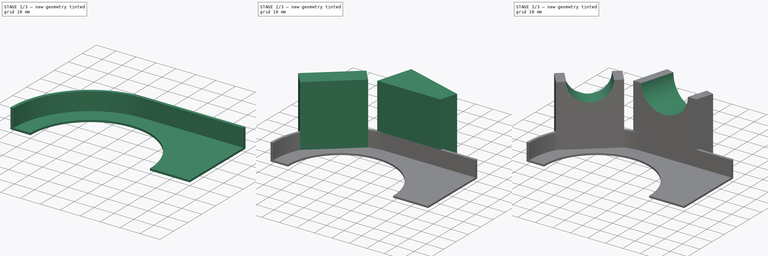
[diagram: build sequence overview — one tinted view per stage of 3, left to right]
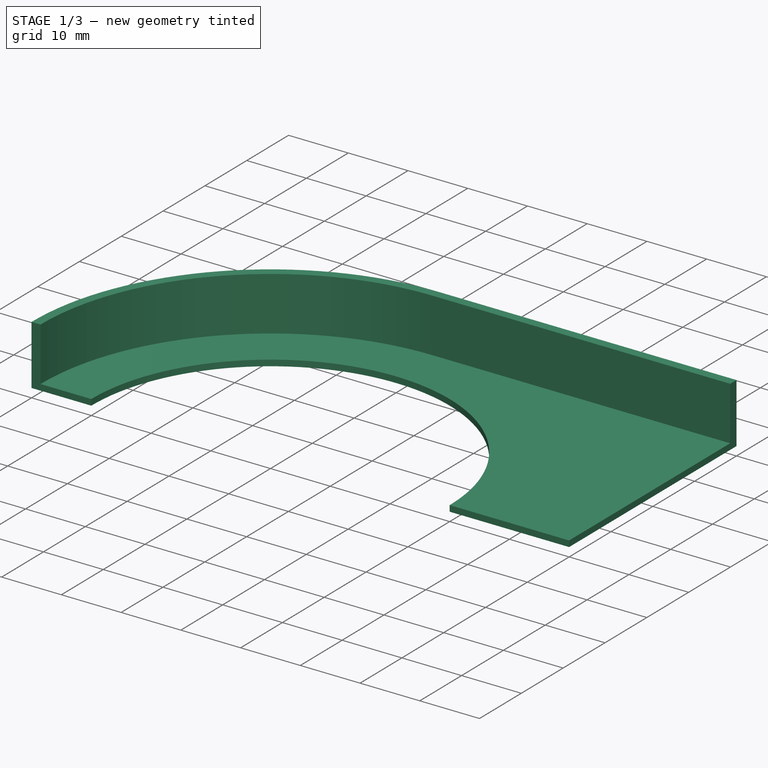
[diagram: stage 1 of 3 — iso view after this stage's code; geometry added in this stage tinted green]
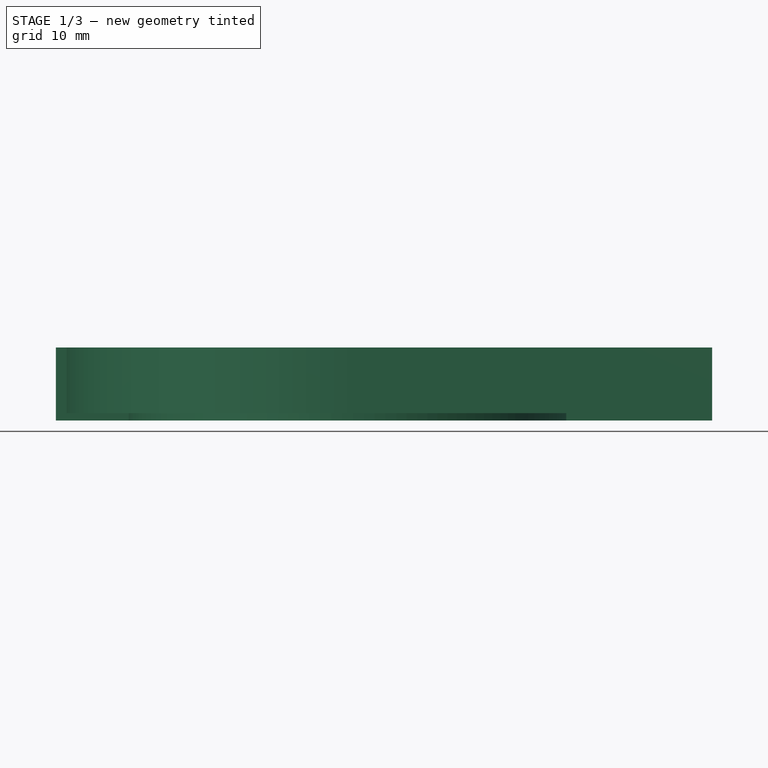
[diagram: stage 1 of 3 — front view after this stage's code; geometry added in this stage tinted green]
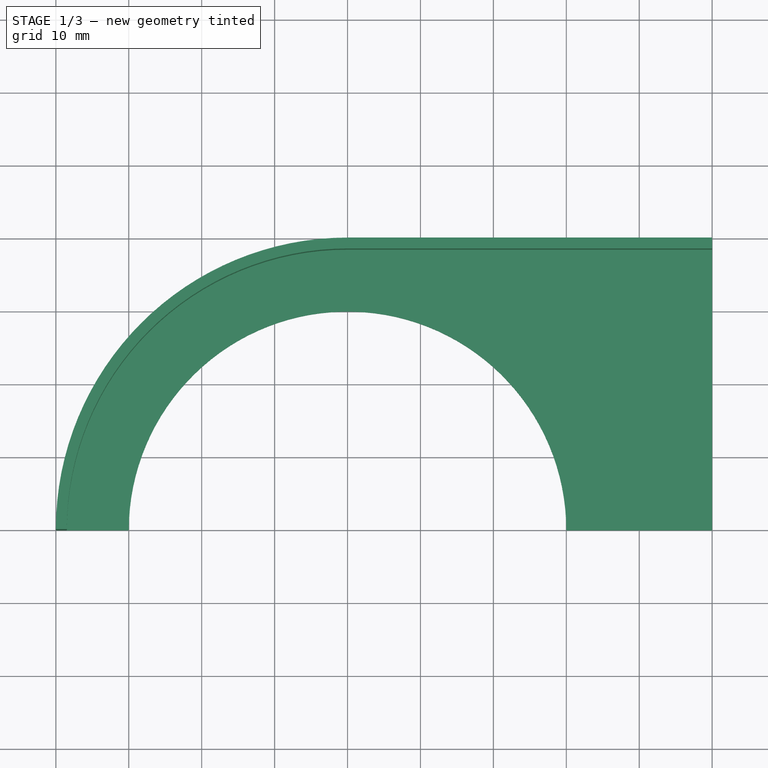
[diagram: stage 1 of 3 — top view after this stage's code; geometry added in this stage tinted green]
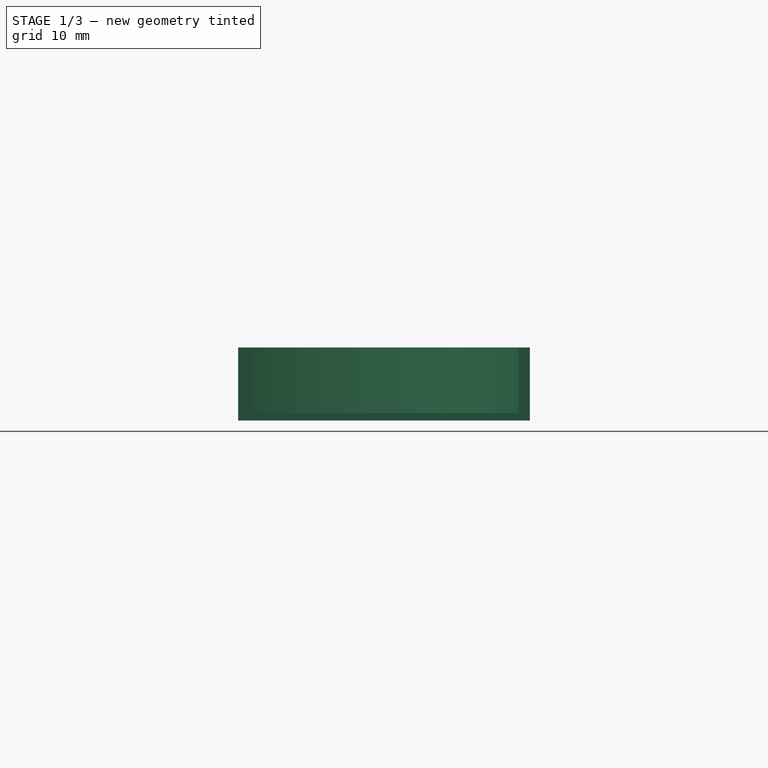
[diagram: stage 1 of 3 — right view after this stage's code; geometry added in this stage tinted green]
FCSTD DOCUMENT  (FreeCAD 0.16R)
Label: Mk725T.01
License: All rights reserved
LicenseURL: http://en.wikipedia.org/wiki/All_rights_reserved
objects: Sketcher::SketchObject×5, PartDesign::Pocket×3, PartDesign::Pad×2
note: 15 computed .brp shape members not serialized (recipe doc carries the construction recipe); baked Part::Feature solids carry a one-line shape summary decoded from their .brp

FEATURE [Sketcher::SketchObject] Sketch
  sketch-geometry (6):
    g0: ArcOfCircle CenterX=0 CenterY=0 CenterZ=0 NormalX=0 NormalY=0 NormalZ=1 Radius=30 StartAngle=0 EndAngle=3.14159
    g1: ArcOfCircle CenterX=0 CenterY=0 CenterZ=0 NormalX=0 NormalY=0 NormalZ=1 Radius=40 StartAngle=1.5708 EndAngle=3.14159
    g2: LineSegment StartX=-40 StartY=0 StartZ=0 EndX=-30 EndY=0 EndZ=0
    g3: LineSegment StartX=0 StartY=40 StartZ=0 EndX=50 EndY=40 EndZ=0
    g4: LineSegment StartX=30 StartY=0 StartZ=0 EndX=50 EndY=0 EndZ=0
    g5: LineSegment StartX=50 StartY=40 StartZ=0 EndX=50 EndY=0 EndZ=0
  constraints (19):
    c: Coincident(g0,g-1)
    c: PointOnObject(g0,g-1)
    c: PointOnObject(g0,g-1)
    c: Radius(g0) = 30
    c: Coincident(g1,g-1)
    c: PointOnObject(g1,g-2)
    c: PointOnObject(g1,g-1)
    c: Radius(g1) = 40
    c: Coincident(g2,g1)
    c: PointOnObject(g2,g-1)
    c: Coincident(g2,g0)
    c: Coincident(g3,g1)
    c: Horizontal(g3)
    c: Distance(g3) = 50
    c: Coincident(g4,g0)
    c: Horizontal(g4)
    c: Coincident(g5,g3)
    c: Coincident(g4,g5)
    c: Vertical(g5)
FEATURE [PartDesign::Pad] Pad
  Length = 10
  Length2 = 100
  Sketch = -> Sketch
  Type = 0
FEATURE [Sketcher::SketchObject] Sketch002
  ExternalGeometry = -> [Pad]
  Placement = pos=(0,0,10) rot=(0,0,1;0rad)
  Support = -> Pad [Face8]
  sketch-geometry (4):
    g0: ArcOfCircle CenterX=0 CenterY=0 CenterZ=0 NormalX=0 NormalY=0 NormalZ=1 Radius=38.5 StartAngle=1.5708 EndAngle=3.14159
    g1: LineSegment StartX=0 StartY=38.5 StartZ=0 EndX=65 EndY=38.5 EndZ=0
    g2: LineSegment StartX=65 StartY=38.5 StartZ=0 EndX=65 EndY=-6.5 EndZ=0
    g3: LineSegment StartX=65 StartY=-6.5 StartZ=0 EndX=-38.5 EndY=0 EndZ=0
  constraints (12):
    c: Coincident(g0,g-1)
    c: PointOnObject(g0,g-1)
    c: PointOnObject(g0,g-2)
    c: Distance(g0,g-3) = 1.5
    c: Coincident(g1,g0)
    c: Horizontal(g1)
    c: Coincident(g1,g2)
    c: Vertical(g2)
    c: Coincident(g2,g3)
    c: Coincident(g3,g0)
    c: Distance(g1) = 65
    c: Distance(g2) = 45
FEATURE [PartDesign::Pocket] Pocket
  Length = 9
  Sketch = -> Sketch002
  Type = 0
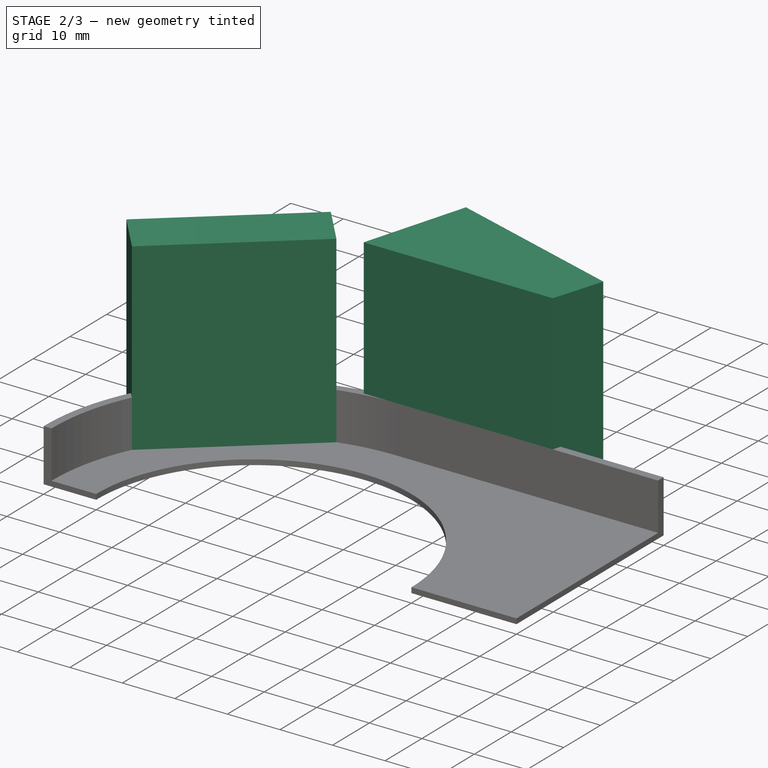
[diagram: stage 2 of 3 — iso view after this stage's code; geometry added in this stage tinted green]
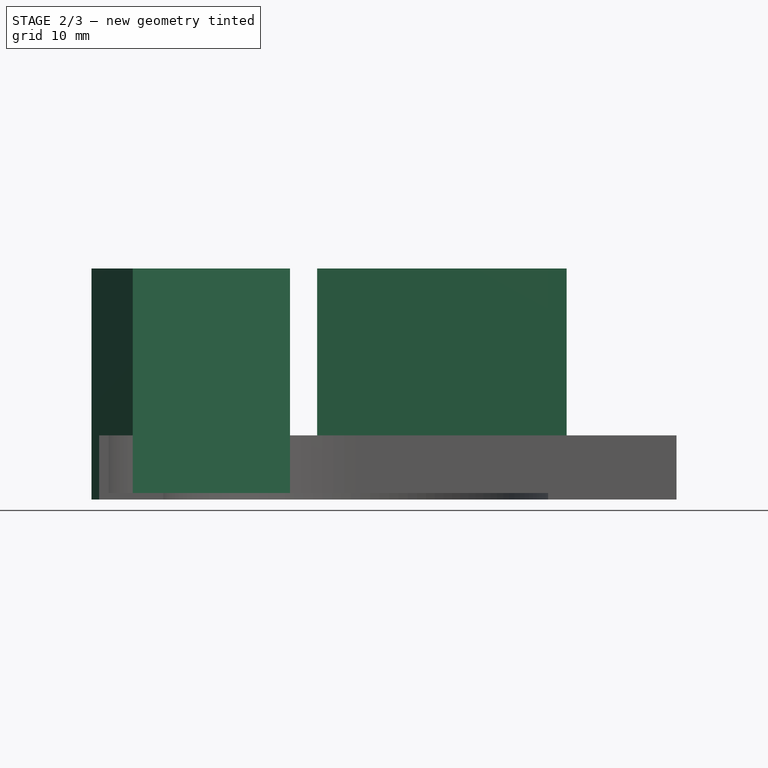
[diagram: stage 2 of 3 — front view after this stage's code; geometry added in this stage tinted green]
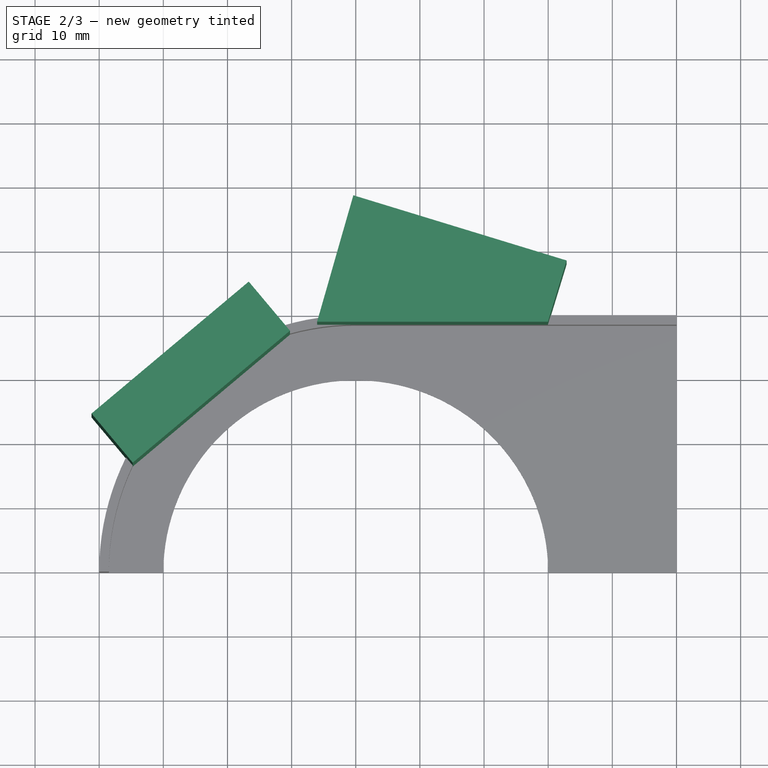
[diagram: stage 2 of 3 — top view after this stage's code; geometry added in this stage tinted green]
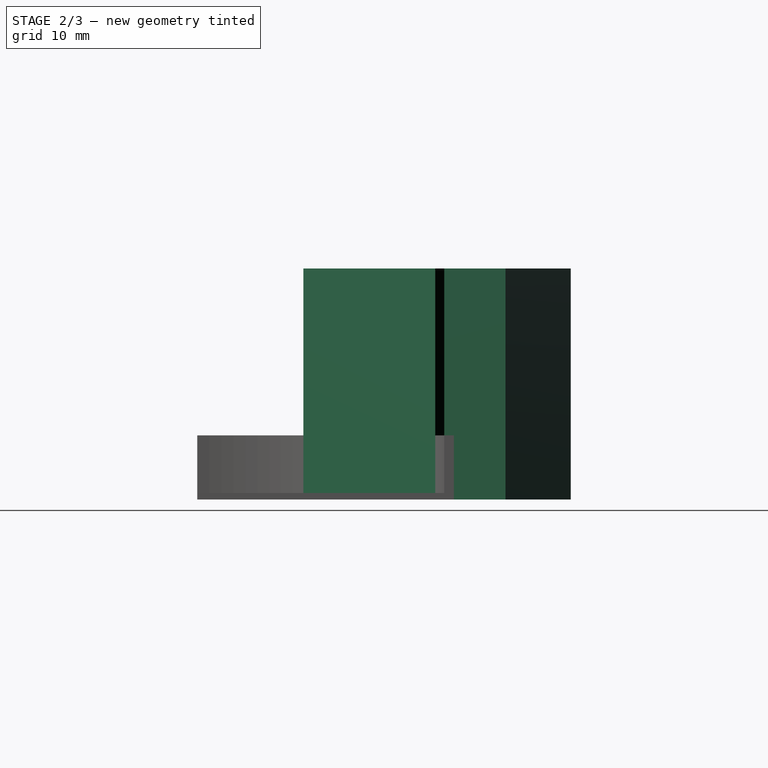
[diagram: stage 2 of 3 — right view after this stage's code; geometry added in this stage tinted green]
FEATURE [Sketcher::SketchObject] Sketch003
  ExternalGeometry = -> [Pocket]
  Placement = pos=(0,0,1) rot=(0,0,1;0rad)
  Support = -> Pocket [Face4]
  sketch-geometry (10):
    g0: LineSegment [constr] StartX=0 StartY=0 StartZ=0 EndX=29.2372 EndY=95.6305 EndZ=0
    g1: LineSegment [constr] StartX=0 StartY=0 StartZ=0 EndX=-64.2788 EndY=76.6044 EndZ=0
    g2: LineSegment StartX=-0.376829 StartY=58.2287 StartZ=0 EndX=-6.02963 EndY=38.5 EndZ=0
    g3: LineSegment StartX=-6.02963 StartY=38.5 StartZ=0 EndX=29.9498 EndY=38.5 EndZ=0
    g4: LineSegment StartX=29.9498 StartY=38.5 StartZ=0 EndX=32.8735 EndY=48.063 EndZ=0
    g5: LineSegment StartX=-16.6802 StartY=44.7703 StartZ=0 EndX=-41.1936 EndY=24.2011 EndZ=0
    g6: LineSegment StartX=-41.1936 StartY=24.2011 StartZ=0 EndX=-34.7658 EndY=16.5406 EndZ=0
    g7: LineSegment StartX=-34.7658 StartY=16.5406 StartZ=0 EndX=-10.2523 EndY=37.1098 EndZ=0
    g8: LineSegment StartX=-10.2523 StartY=37.1098 StartZ=0 EndX=-16.6802 EndY=44.7703 EndZ=0
    g9: LineSegment StartX=-0.376829 StartY=58.2287 StartZ=0 EndX=32.8735 EndY=48.063 EndZ=0
  constraints (26):
    c: Coincident(g0,g-1)
    c: Coincident(g1,g-1)
    c: Coincident(g2,g3)
    c: Coincident(g3,g4)
    c: PointOnObject(g3,g-4)
    c: PointOnObject(g2,g-4)
    c: Parallel(g4,g0)
    c: Distance(g4) = 10
    c: Coincident(g5,g6)
    c: Coincident(g6,g7)
    c: Coincident(g7,g8)
    c: Coincident(g8,g5)
    c: Parallel(g8,g6)
    c: Parallel(g7,g5)
    c: Perpendicular(g8,g7)
    c: Symmetric(g5,g5,g1)
    c: Distance(g8) = 10
    c: Distance(g5) = 32
    c: PointOnObject(g7,g-6)
    c: Angle(g1) = 2.26893
    c: Angle(g0) = 1.27409
    c: Distance(g0) = 100
    c: Distance(g1) = 100
    c: Coincident(g9,g2)
    c: Coincident(g9,g4)
    c: Symmetric(g4,g2,g0)
FEATURE [PartDesign::Pad] Pad001
  Length = 35
  Length2 = 1
  Sketch = -> Sketch003
  Type = 4
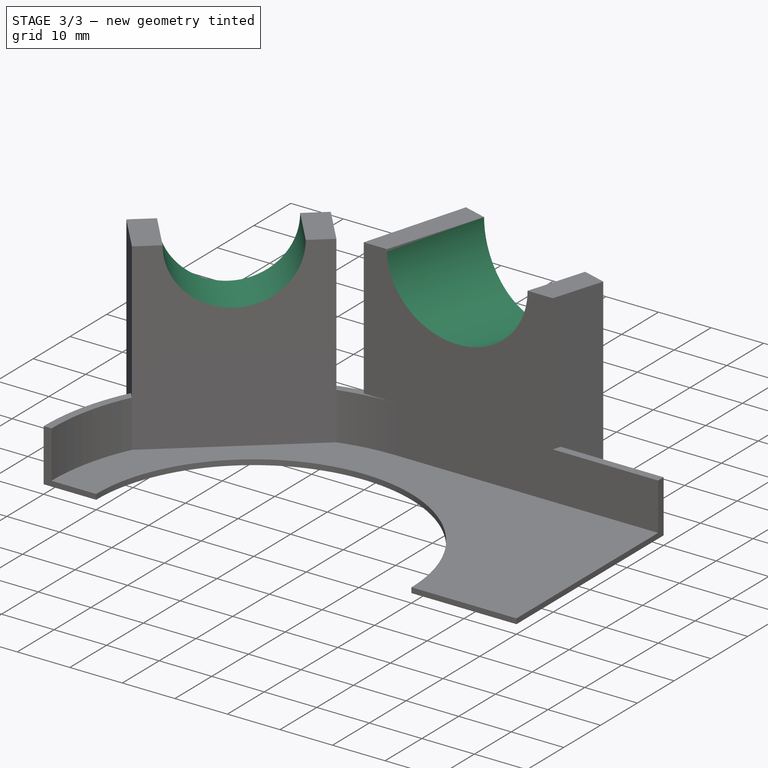
[diagram: stage 3 of 3 — iso view after this stage's code; geometry added in this stage tinted green]
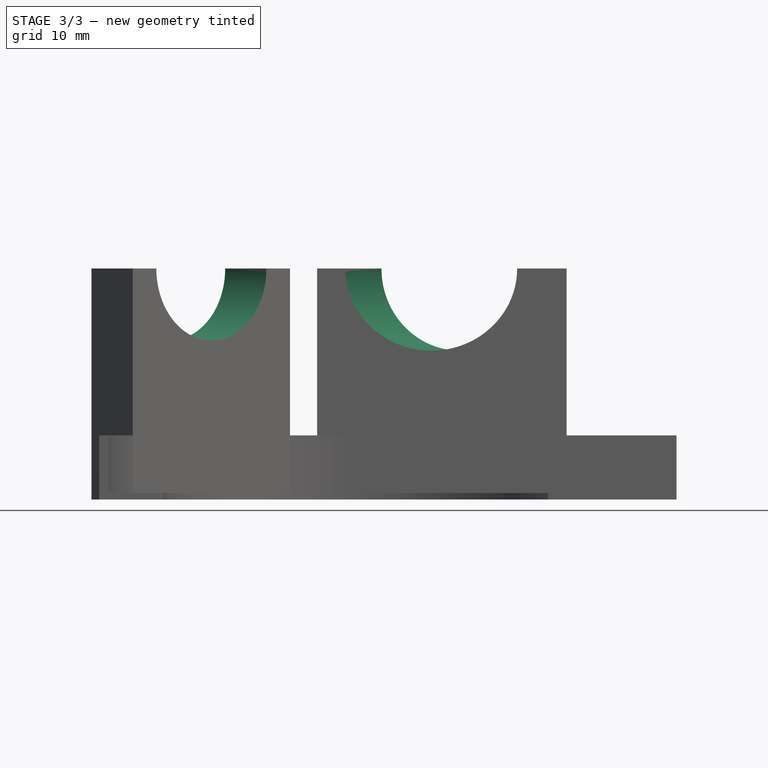
[diagram: stage 3 of 3 — front view after this stage's code; geometry added in this stage tinted green]
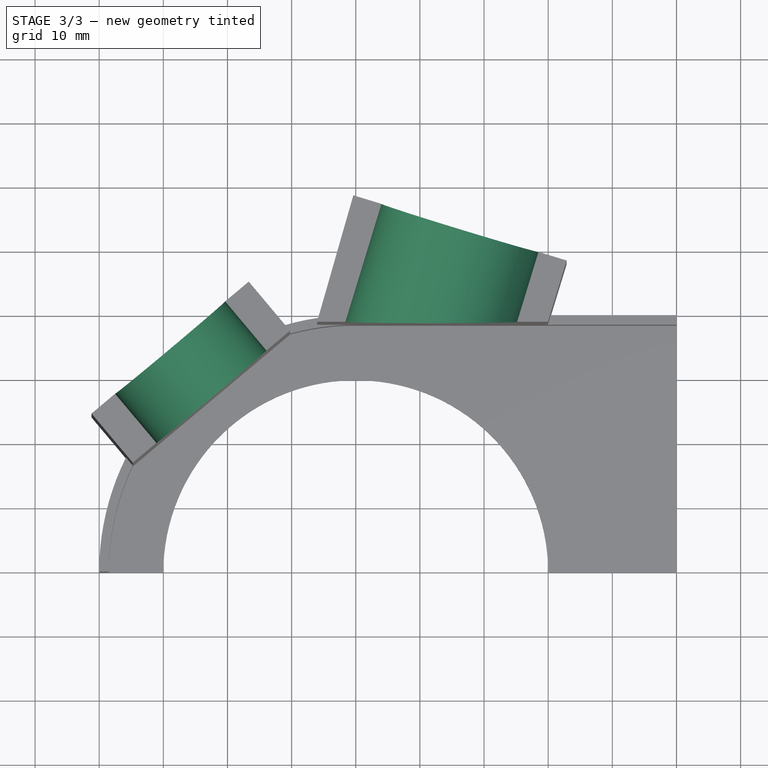
[diagram: stage 3 of 3 — top view after this stage's code; geometry added in this stage tinted green]
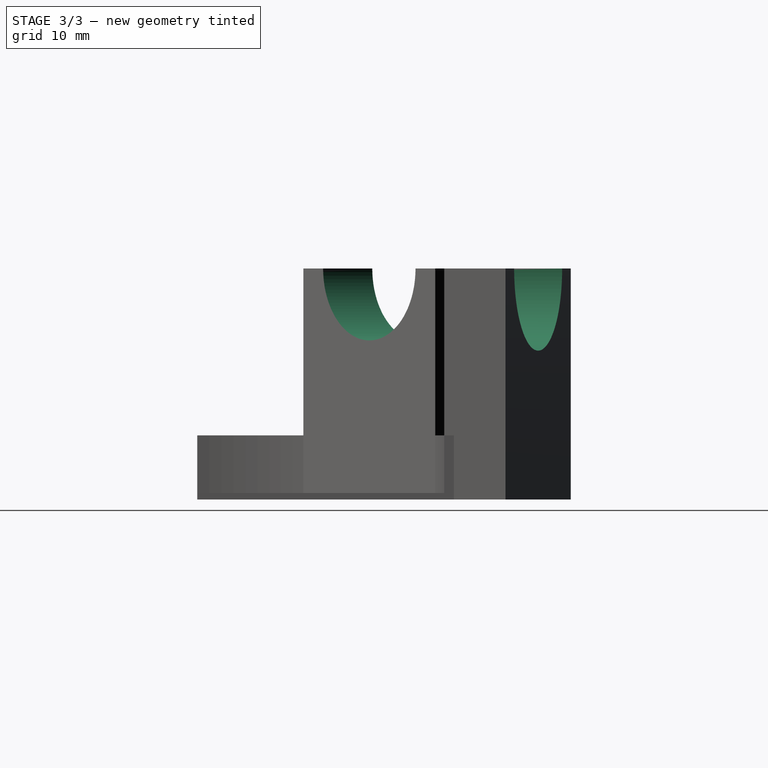
[diagram: stage 3 of 3 — right view after this stage's code; geometry added in this stage tinted green]
FEATURE [Sketcher::SketchObject] Sketch007
  ExternalGeometry = -> [Pad001]
  Placement = pos=(16.2483,53.1459,0) rot=(0.105093,0.703191,0.703191;2.93218rad)
  Support = -> Pad001 [Face28]
  sketch-geometry (1):
    g0: Circle CenterX=0 CenterY=36 CenterZ=0 NormalX=0 NormalY=0 NormalZ=1 Radius=12.8
  constraints (3):
    c: Radius(g0) = 12.8
    c: PointOnObject(g0,g-2)
    c: PointOnObject(g0,g-3)
FEATURE [PartDesign::Pocket] Pocket001
  Length = 5
  Sketch = -> Sketch007
  Type = 1
FEATURE [Sketcher::SketchObject] Sketch004
  ExternalGeometry = -> [Pad001,Pocket001]
  Placement = pos=(-28.9369,34.4857,0) rot=(-0.249244,0.684791,0.684791;3.63013rad)
  Support = -> Pocket001 [Face30]
  sketch-geometry (1):
    g0: Circle CenterX=0 CenterY=36 CenterZ=0 NormalX=0 NormalY=0 NormalZ=1 Radius=11.2
  constraints (3):
    c: PointOnObject(g0,g-2)
    c: Radius(g0) = 11.2
    c: PointOnObject(g0,g-6)
FEATURE [PartDesign::Pocket] Pocket002
  Length = 5
  Sketch = -> Sketch004
  Type = 1
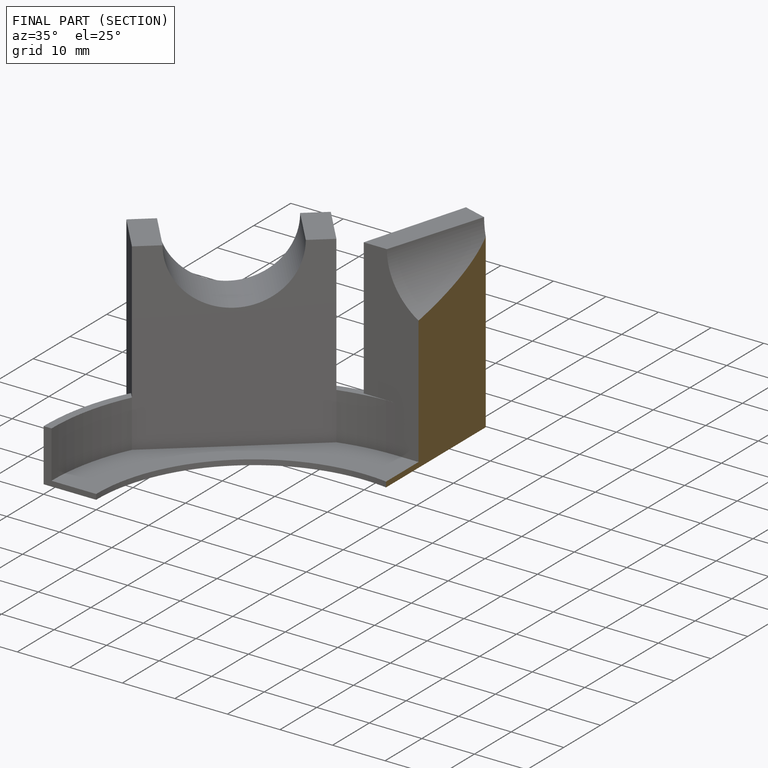
[diagram: finished part — half-section view (interior)]
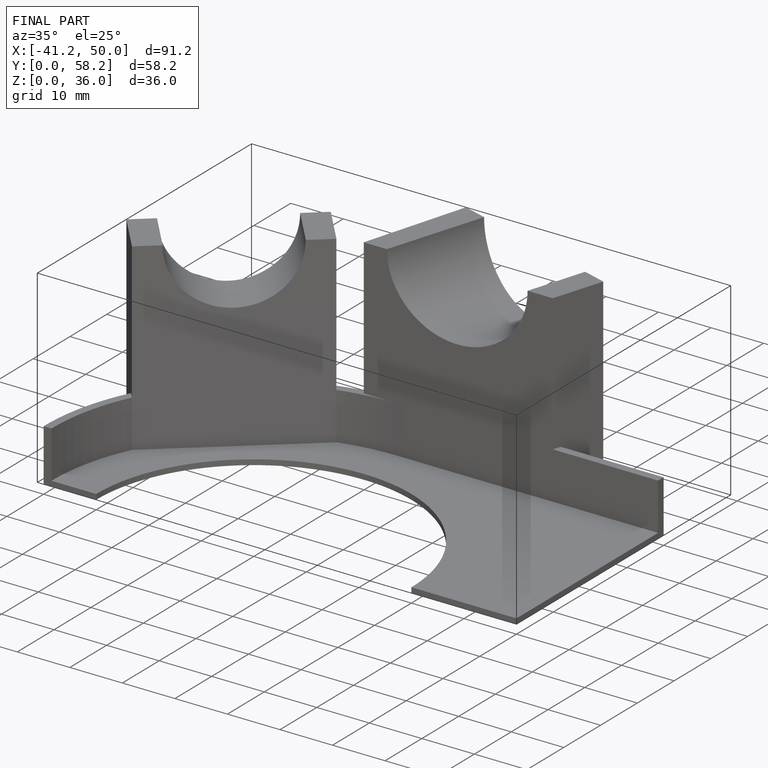
[diagram: finished part — iso view with bounding-box wireframe]
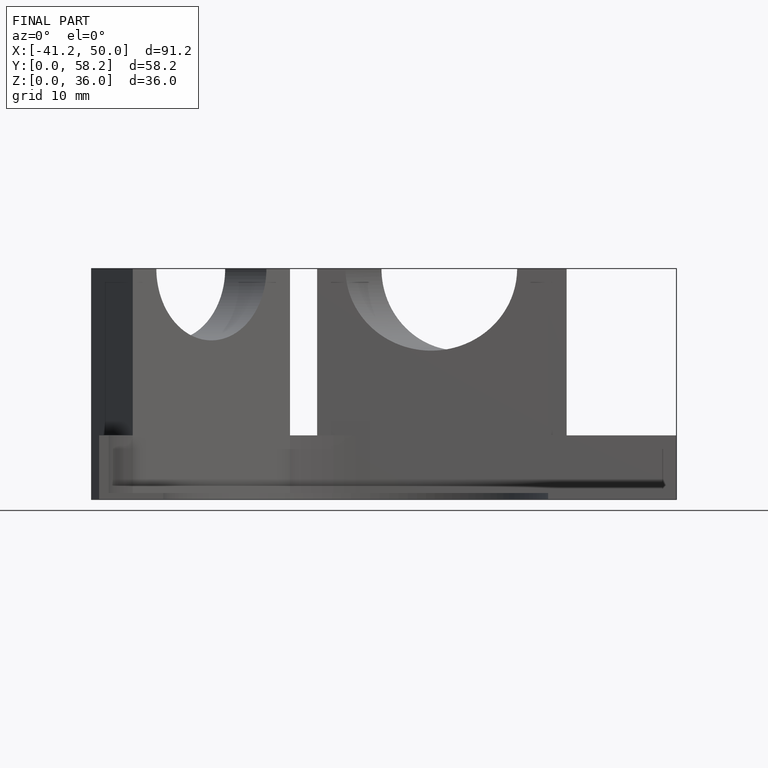
[diagram: finished part — front view with bounding-box wireframe]
